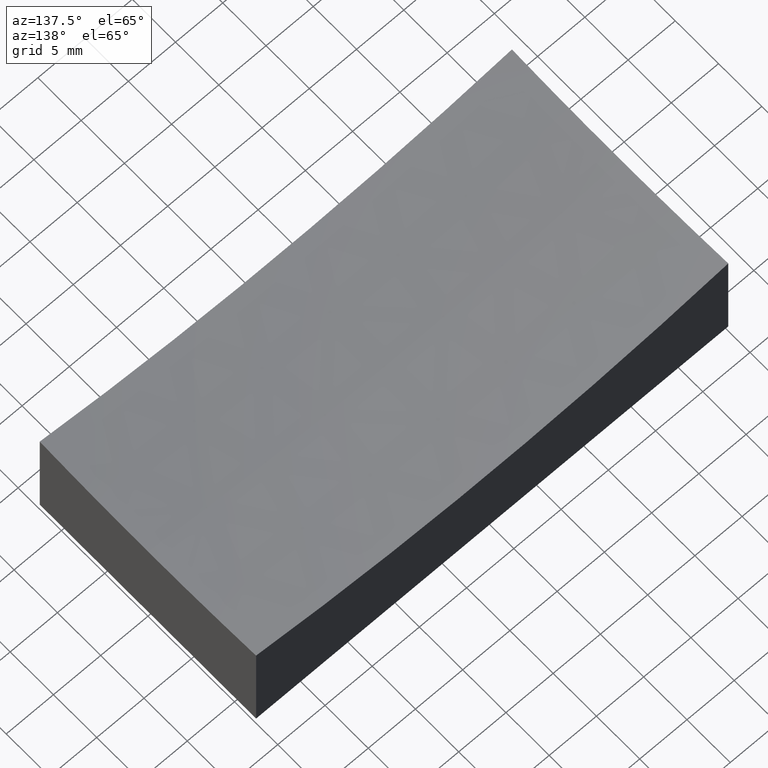
[diagram: clean part render]
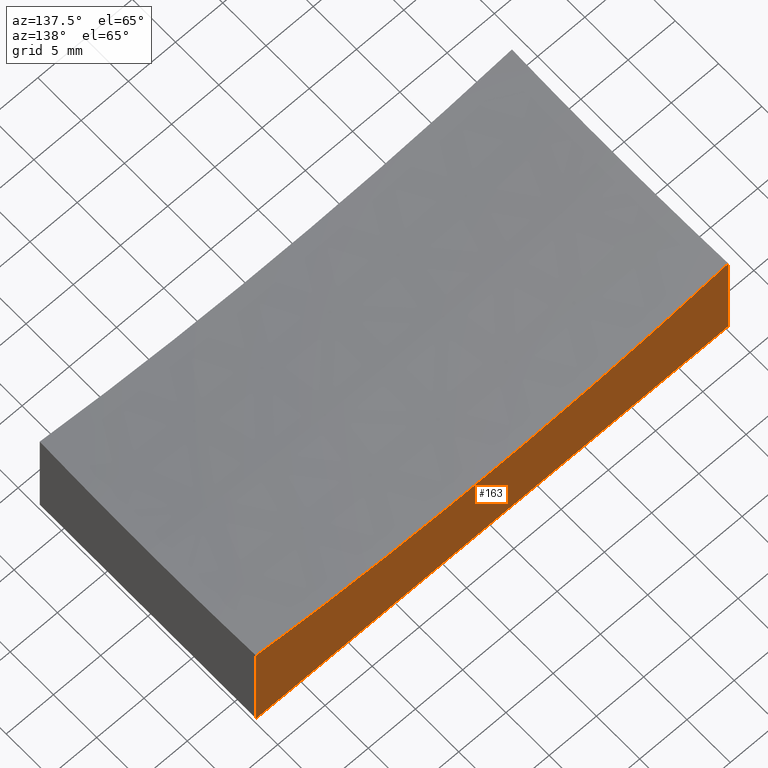
[diagram: same view with one face highlighted and labeled with its STEP entity id]
A machine part, auxiliary view. The second image highlights one B-rep face of the part: STEP entity #163.
In plain terms, the highlighted planar face has unit normal (0, -1, 0).
Its self-contained STEP definition (entity closure, byte-faithful):
#2 = EDGE_CURVE ( 'NONE', #228, #4, #135, .T. ) ;
#4 = VERTEX_POINT ( 'NONE', #192 ) ;
#9 = ORIENTED_EDGE ( 'NONE', *, *, #213, .T. ) ;
#24 = VECTOR ( 'NONE', #233, 1000.000000000000000 ) ;
#27 = VERTEX_POINT ( 'NONE', #95 ) ;
#32 = DIRECTION ( 'NONE',  ( 0.000000000000000000, 0.000000000000000000, -1.000000000000000000 ) ) ;
#33 = DIRECTION ( 'NONE',  ( -0.000000000000000000, -0.000000000000000000, -1.000000000000000000 ) ) ;
#42 = ORIENTED_EDGE ( 'NONE', *, *, #2, .F. ) ;
#53 = DIRECTION ( 'NONE',  ( 0.000000000000000000, -0.000000000000000000, -1.000000000000000000 ) ) ;
#62 = VECTOR ( 'NONE', #77, 1000.000000000000000 ) ;
#66 = EDGE_LOOP ( 'NONE', ( #132, #9, #183, #42 ) ) ;
#77 = DIRECTION ( 'NONE',  ( -1.000000000000000000, -0.000000000000000000, -0.000000000000000000 ) ) ;
#80 = DIRECTION ( 'NONE',  ( 0.000000000000000000, -1.000000000000000000, 0.000000000000000000 ) ) ;
#91 = CARTESIAN_POINT ( 'NONE',  ( 0.000000000000000000, 12.50000000000000000, 159.0000000000000000 ) ) ;
#95 = CARTESIAN_POINT ( 'NONE',  ( 25.00000000000000355, 12.50000000000000000, 0.000000000000000000 ) ) ;
#99 = VECTOR ( 'NONE', #33, 1000.000000000000000 ) ;
#102 = CARTESIAN_POINT ( 'NONE',  ( -25.00000000000000000, 12.50000000000000000, 15.00000000000000000 ) ) ;
#103 = AXIS2_PLACEMENT_3D ( 'NONE', #91, #208, #32 ) ;
#118 = PLANE ( 'NONE',  #159 ) ;
#120 = LINE ( 'NONE', #138, #62 ) ;
#124 = CIRCLE ( 'NONE', #103, 149.4782592887674184 ) ;
#132 = ORIENTED_EDGE ( 'NONE', *, *, #140, .F. ) ;
#135 = LINE ( 'NONE', #212, #99 ) ;
#137 = LINE ( 'NONE', #229, #24 ) ;
#138 = CARTESIAN_POINT ( 'NONE',  ( -25.00000000000000000, 12.50000000000000000, 0.000000000000000000 ) ) ;
#140 = EDGE_CURVE ( 'NONE', #223, #228, #124, .T. ) ;
#146 = FACE_OUTER_BOUND ( 'NONE', #66, .T. ) ;
#159 = AXIS2_PLACEMENT_3D ( 'NONE', #102, #80, #53 ) ;
#163 = ADVANCED_FACE ( 'NONE', ( #146 ), #118, .F. ) ;
#183 = ORIENTED_EDGE ( 'NONE', *, *, #198, .T. ) ;
#192 = CARTESIAN_POINT ( 'NONE',  ( -25.00000000000000000, 12.50000000000000000, 0.000000000000000000 ) ) ;
#194 = CARTESIAN_POINT ( 'NONE',  ( 25.00000000000000355, 12.50000000000000000, 11.62717346810510044 ) ) ;
#197 = CARTESIAN_POINT ( 'NONE',  ( -25.00000000000000000, 12.50000000000000000, 11.62717346810510044 ) ) ;
#198 = EDGE_CURVE ( 'NONE', #27, #4, #120, .T. ) ;
#208 = DIRECTION ( 'NONE',  ( -0.000000000000000000, 1.000000000000000000, -0.000000000000000000 ) ) ;
#212 = CARTESIAN_POINT ( 'NONE',  ( -25.00000000000000000, 12.50000000000000000, 15.00000000000000000 ) ) ;
#213 = EDGE_CURVE ( 'NONE', #223, #27, #137, .T. ) ;
#223 = VERTEX_POINT ( 'NONE', #194 ) ;
#228 = VERTEX_POINT ( 'NONE', #197 ) ;
#229 = CARTESIAN_POINT ( 'NONE',  ( 25.00000000000000355, 12.50000000000000000, 15.00000000000000000 ) ) ;
#233 = DIRECTION ( 'NONE',  ( -0.000000000000000000, -0.000000000000000000, -1.000000000000000000 ) ) ;